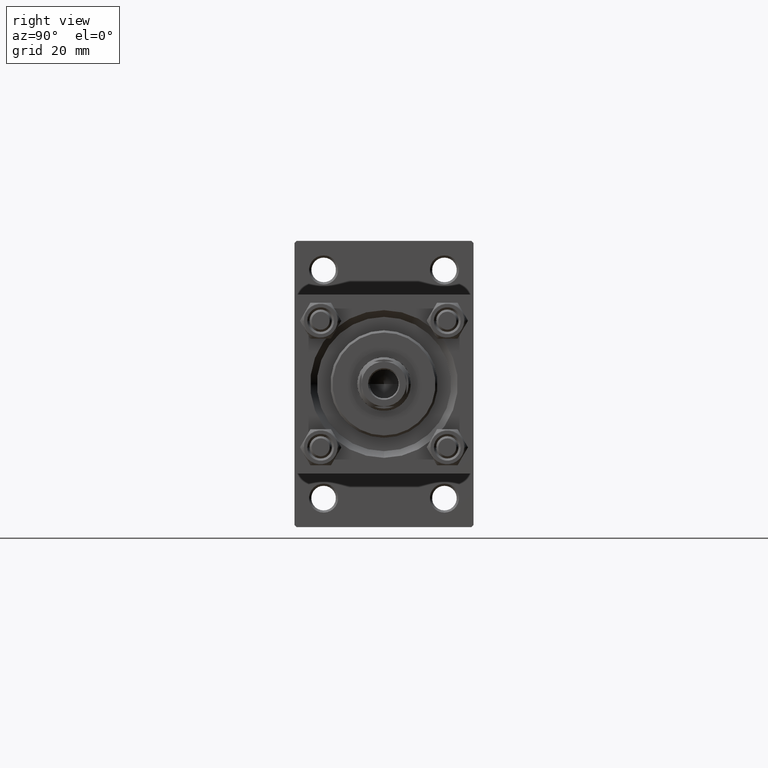
[diagram: clean part render]
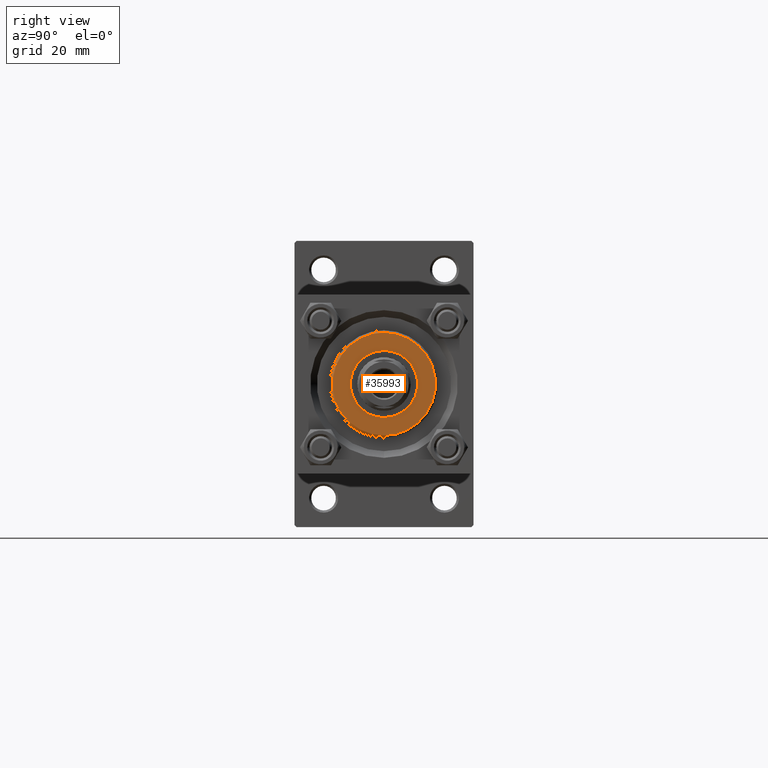
[diagram: same view with one face highlighted and labeled with its STEP entity id]
A machine part, right view. The second image highlights one B-rep face of the part: STEP entity #35993.
In plain terms, the highlighted planar face has unit normal (1, 0, 0).
Its self-contained STEP definition (entity closure, byte-faithful):
#1006 = DIRECTION ( 'NONE',  ( 0.000000000000000000, 0.000000000000000000, 1.000000000000000000 ) ) ;
#1133 = CARTESIAN_POINT ( 'NONE',  ( 0.000000000000000000, 0.000000000000000000, 35.70000000000000284 ) ) ;
#1980 = EDGE_LOOP ( 'NONE', ( #34770, #35443 ) ) ;
#2924 = ORIENTED_EDGE ( 'NONE', *, *, #28909, .T. ) ;
#8962 = DIRECTION ( 'NONE',  ( 0.000000000000000000, 0.000000000000000000, 1.000000000000000000 ) ) ;
#9571 = AXIS2_PLACEMENT_3D ( 'NONE', #27177, #12260, #46581 ) ;
#10091 = FACE_OUTER_BOUND ( 'NONE', #47989, .T. ) ;
#10868 = AXIS2_PLACEMENT_3D ( 'NONE', #43173, #1006, #16413 ) ;
#11496 = VERTEX_POINT ( 'NONE', #19828 ) ;
#12260 = DIRECTION ( 'NONE',  ( 0.000000000000000000, 0.000000000000000000, 1.000000000000000000 ) ) ;
#13133 = AXIS2_PLACEMENT_3D ( 'NONE', #43684, #39653, #16945 ) ;
#15958 = EDGE_CURVE ( 'NONE', #38600, #11496, #46644, .T. ) ;
#16413 = DIRECTION ( 'NONE',  ( 1.000000000000000000, 0.000000000000000000, 0.000000000000000000 ) ) ;
#16945 = DIRECTION ( 'NONE',  ( 1.000000000000000000, 0.000000000000000000, -0.000000000000000000 ) ) ;
#17790 = VERTEX_POINT ( 'NONE', #34448 ) ;
#19828 = CARTESIAN_POINT ( 'NONE',  ( 7.500000000000000888, 0.000000000000000000, 35.70000000000000284 ) ) ;
#22041 = DIRECTION ( 'NONE',  ( 1.000000000000000000, 0.000000000000000000, 0.000000000000000000 ) ) ;
#25362 = EDGE_CURVE ( 'NONE', #48995, #17790, #39481, .T. ) ;
#25807 = AXIS2_PLACEMENT_3D ( 'NONE', #33152, #32220, #22041 ) ;
#26599 = AXIS2_PLACEMENT_3D ( 'NONE', #1133, #8962, #39764 ) ;
#27033 = CARTESIAN_POINT ( 'NONE',  ( -7.500000000000000888, 9.184850993605149917E-16, 35.70000000000000284 ) ) ;
#27177 = CARTESIAN_POINT ( 'NONE',  ( 0.000000000000000000, 0.000000000000000000, 35.70000000000000284 ) ) ;
#28909 = EDGE_CURVE ( 'NONE', #17790, #48995, #48331, .T. ) ;
#29054 = FACE_BOUND ( 'NONE', #1980, .T. ) ;
#31315 = CARTESIAN_POINT ( 'NONE',  ( -11.49999999999999645, 0.000000000000000000, 35.70000000000000284 ) ) ;
#32069 = ORIENTED_EDGE ( 'NONE', *, *, #25362, .T. ) ;
#32220 = DIRECTION ( 'NONE',  ( 0.000000000000000000, 0.000000000000000000, 1.000000000000000000 ) ) ;
#32636 = CIRCLE ( 'NONE', #10868, 7.500000000000000888 ) ;
#33152 = CARTESIAN_POINT ( 'NONE',  ( 0.000000000000000000, 0.000000000000000000, 35.70000000000000284 ) ) ;
#34448 = CARTESIAN_POINT ( 'NONE',  ( 11.49999999999999645, 1.438959988998139963E-15, 35.70000000000000284 ) ) ;
#34770 = ORIENTED_EDGE ( 'NONE', *, *, #40455, .F. ) ;
#35443 = ORIENTED_EDGE ( 'NONE', *, *, #15958, .F. ) ;
#35993 = ADVANCED_FACE ( 'NONE', ( #29054, #10091 ), #44429, .T. ) ;
#38600 = VERTEX_POINT ( 'NONE', #27033 ) ;
#39481 = CIRCLE ( 'NONE', #25807, 11.49999999999999645 ) ;
#39653 = DIRECTION ( 'NONE',  ( 0.000000000000000000, 0.000000000000000000, 1.000000000000000000 ) ) ;
#39764 = DIRECTION ( 'NONE',  ( 1.000000000000000000, 0.000000000000000000, 0.000000000000000000 ) ) ;
#40455 = EDGE_CURVE ( 'NONE', #11496, #38600, #32636, .T. ) ;
#43173 = CARTESIAN_POINT ( 'NONE',  ( 0.000000000000000000, 0.000000000000000000, 35.70000000000000284 ) ) ;
#43684 = CARTESIAN_POINT ( 'NONE',  ( 0.000000000000000000, 0.000000000000000000, 35.70000000000000284 ) ) ;
#44429 = PLANE ( 'NONE',  #13133 ) ;
#46581 = DIRECTION ( 'NONE',  ( 1.000000000000000000, 0.000000000000000000, 0.000000000000000000 ) ) ;
#46644 = CIRCLE ( 'NONE', #9571, 7.500000000000000888 ) ;
#47989 = EDGE_LOOP ( 'NONE', ( #32069, #2924 ) ) ;
#48331 = CIRCLE ( 'NONE', #26599, 11.49999999999999645 ) ;
#48995 = VERTEX_POINT ( 'NONE', #31315 ) ;